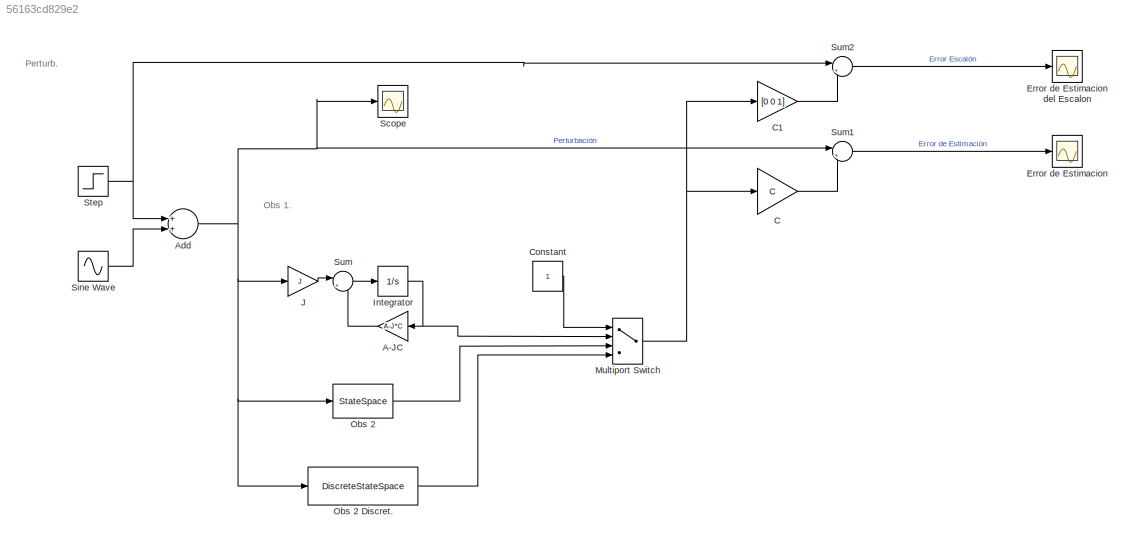
MODEL slx_56163cd829e2
KIND model
CONFIG AbsTol = auto
CONFIG EnableMultiTasking = on
CONFIG FixedStep = auto
CONFIG MaxStep = auto
CONFIG MinStep = auto
CONFIG PreLoadFcn = rechazo1;
CONFIG RelTol = 1e-3
CONFIG SampleTimeConstraint = Unconstrained
CONFIG Solver = ode5
CONFIG SolverName = ode5
CONFIG StartFcn = rechazo1;
CONFIG StartTime = 0.0
CONFIG StopTime = 30
BLOCK [Gain] A-JC
  Gain = A-J*C
  Multiplication = Matrix(K*u)
  OutDataTypeStr = Inherit: Inherit via internal rule
  ParamDataTypeStr = Inherit: Inherit via internal rule
  SaturateOnIntegerOverflow = off
BLOCK [Sum] Add
  InputSameDT = off
  OutDataTypeStr = Inherit: Inherit via internal rule
  Ports = [2, 1]
  SaturateOnIntegerOverflow = off
BLOCK [Gain] C
  Gain = C
  Multiplication = Matrix(K*u)
  OutDataTypeStr = Inherit: Inherit via internal rule
  ParamDataTypeStr = Inherit: Inherit via internal rule
  SaturateOnIntegerOverflow = off
BLOCK [Gain] C1
  Gain = [0 0 1]
  Multiplication = Matrix(K*u)
  OutDataTypeStr = Inherit: Inherit via internal rule
  ParamDataTypeStr = Inherit: Inherit via internal rule
  SaturateOnIntegerOverflow = off
BLOCK [Constant] Constant
BLOCK [Scope] Error de Estimacion
  Floating = off
  NumInputPorts = 1
  Ports = [1]
  ScopeSpecificationString = Simulink.scopes.TimeScopeBlockCfg('CurrentConfiguration', extmgr.ConfigurationSet(extmgr.Configuration('Core','General UI',true,'FigureColor',[1 1 1]),extmgr.Configuration('Core','Source UI',true),extmgr.Configuration('Sources','WiredSimulink',true,'DataLoggingVariableName','ScopeData2','DataLoggingSaveFormat','StructureWithTime','DataLoggingLimitDataPoints',true,'DataLoggingDecimation','1','DataL...<+1811ch>
BLOCK [Scope] Error de Estimacion del Escalon
  Floating = off
  NumInputPorts = 1
  Ports = [1]
  ScopeSpecificationString = Simulink.scopes.TimeScopeBlockCfg('CurrentConfiguration', extmgr.ConfigurationSet(extmgr.Configuration('Core','General UI',true,'FigureColor',[1 1 1]),extmgr.Configuration('Core','Source UI',true),extmgr.Configuration('Sources','WiredSimulink',true,'DataLoggingVariableName','ScopeData3','DataLoggingSaveFormat','StructureWithTime','DataLoggingDecimation','1'),extmgr.Configuration('Visuals','Time Do...<+1740ch>
BLOCK [Integrator] Integrator
  InitialCondition = zeros(length(A),1)
  Ports = [1, 1]
BLOCK [Gain] J
  Gain = J
  Multiplication = Matrix(K*u)
  OutDataTypeStr = Inherit: Inherit via internal rule
  ParamDataTypeStr = Inherit: Inherit via internal rule
  SaturateOnIntegerOverflow = off
BLOCK [MultiPortSwitch] Multiport Switch
  InputSameDT = off
  Ports = [4, 1]
  SaturateOnIntegerOverflow = off
BLOCK [StateSpace] Obs 2
  A = A-J*C
  B = J
  C = eye(3)
  D = zeros(3,1)
  InitialCondition = 0
  Ports = [1, 1]
BLOCK [DiscreteStateSpace] Obs 2 Discret.
  A = Akd
  B = Bkd
  C = Ckd
  D = Dkd
  SampleTime = T
BLOCK [Scope] Scope
  Floating = off
  NumInputPorts = 1
  Ports = [1]
  ScopeSpecificationString = Simulink.scopes.TimeScopeBlockCfg('CurrentConfiguration', extmgr.ConfigurationSet(extmgr.Configuration('Core','General UI',true,'FigureColor',[1 1 1]),extmgr.Configuration('Core','Source UI',true),extmgr.Configuration('Sources','WiredSimulink',true,'DataLoggingSaveFormat','StructureWithTime','DataLoggingDecimation','1'),extmgr.Configuration('Visuals','Time Domain',true,'SerializedDisplays',{struct...<+1720ch>
BLOCK [Sin] Sine Wave
  Frequency = omega
  Ports = [0, 1]
  SampleTime = 0
BLOCK [Step] Step
  SampleTime = 0
BLOCK [Sum] Sum
  IconShape = round
  InputSameDT = off
  Inputs = |++
  OutDataTypeStr = Inherit: Inherit via internal rule
  Ports = [2, 1]
  SaturateOnIntegerOverflow = off
BLOCK [Sum] Sum1
  IconShape = round
  InputSameDT = off
  Inputs = |+-
  OutDataTypeStr = Inherit: Inherit via internal rule
  Ports = [2, 1]
  SaturateOnIntegerOverflow = off
BLOCK [Sum] Sum2
  IconShape = round
  InputSameDT = off
  Inputs = |+-
  OutDataTypeStr = Inherit: Inherit via internal rule
  Ports = [2, 1]
  SaturateOnIntegerOverflow = off
ANNOTATION (root): Obs 1.
ANNOTATION (root): Perturb.
LINE A-JC:1 -> Sum:2
NET Add:1 -> J:1, Obs 2 Discret.:1, Obs 2:1, Scope:1, Sum1:1
LINE C1:1 -> Sum2:2
LINE C:1 -> Sum1:2
LINE Constant:1 -> Multiport Switch:1
NET Integrator:1 -> A-JC:1, Multiport Switch:2
LINE J:1 -> Sum:1
NET Multiport Switch:1 -> C1:1, C:1
LINE Obs 2 Discret.:1 -> Multiport Switch:4
LINE Obs 2:1 -> Multiport Switch:3
LINE Sine Wave:1 -> Add:2
NET Step:1 -> Add:1, Sum2:1
LINE Sum1:1 -> Error de Estimacion:1
LINE Sum2:1 -> Error de Estimacion del Escalon:1
LINE Sum:1 -> Integrator:1
note: NET lines group one-source signal fan-out (src -> all destinations, sorted); 1:1 wires keep LINE
